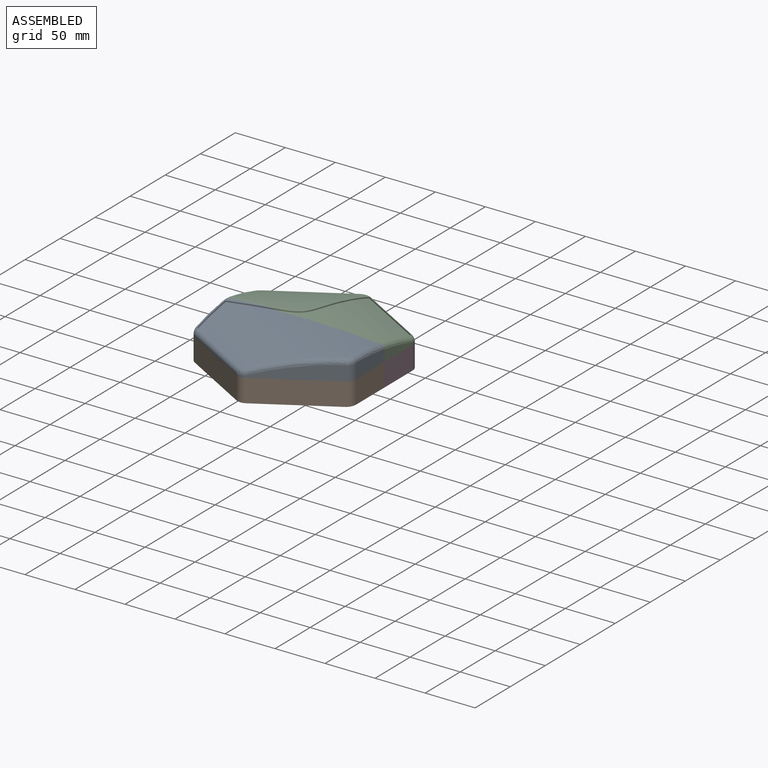
[diagram: assembled view]
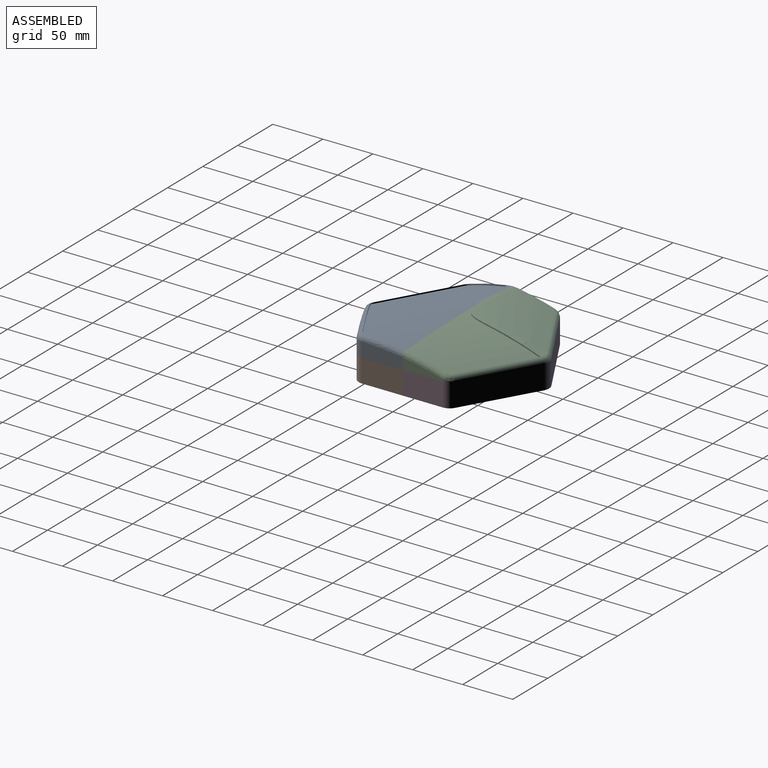
[diagram: assembled view, second angle]
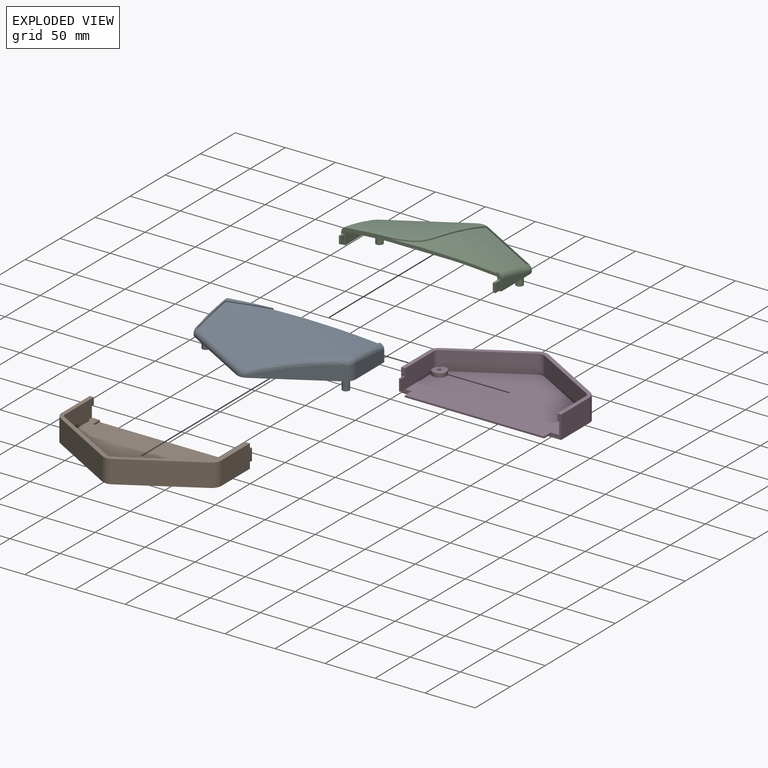
[diagram: exploded view]
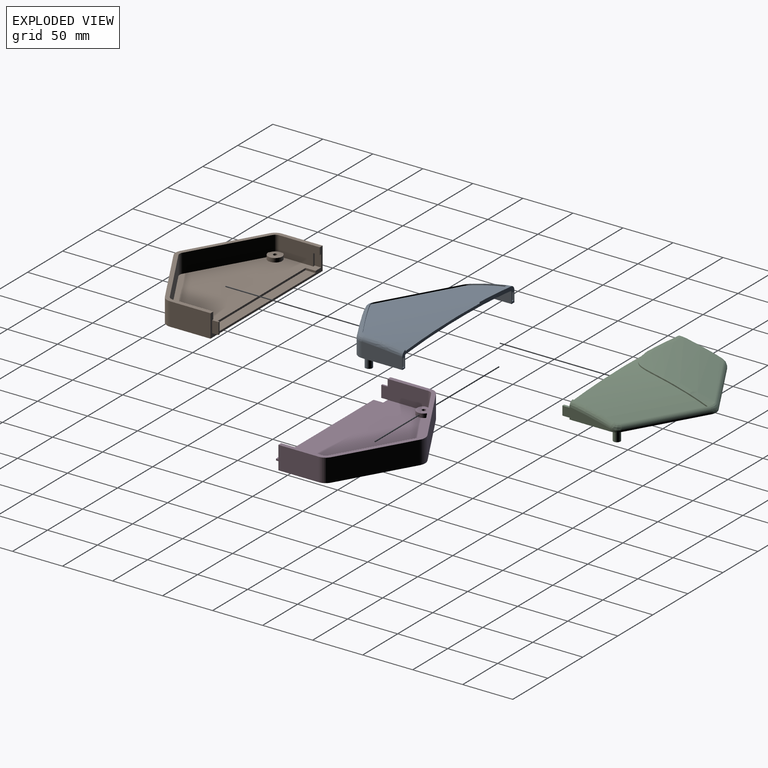
[diagram: exploded view, second angle]
ASSEMBLY  parts=4 mates=3
PART A: 58 faces, bbox 188.9x33.6x176.1 mm
  f0: plane 9x8mm, normal (-1,0,0), area 72mm2, adj f1,f3,f4,f5
  f1: plane 8x2.5mm, normal (0,1,0), area 20mm2, adj f0,f2,f3,f5
  f2: plane 9x8mm, normal (1,0,0), area 72mm2, adj f1,f3,f4,f5
  f3: plane 9x2.5mm, normal (0,0,1), area 22.5mm2, adj f0,f1,f2,f4
  f4: plane 8x2.5mm, normal (0,-1,0), area 20mm2, adj f0,f2,f3,f5
  f5: plane 161.9x21.08mm, normal (0,0,1), area 557.1mm2, adj f0,f1,f2,f4,f6,f8,f9,f10
  f6: plane 5x2.5mm, normal (0,-1,0), area 12.5mm2, adj f5,f7,f8,f10
  f7: plane 8x2.5mm, normal (0,0,1), area 20mm2, adj f6,f8,f9,f10
  f8: plane 8x5mm, normal (1,0,0), area 40mm2, adj f5,f6,f7,f9
  f9: plane 5x2.5mm, normal (0,1,0), area 12.5mm2, adj f5,f7,f8,f10
  f10: plane 8x5mm, normal (-1,0,0), area 40mm2, adj f5,f6,f7,f9
  f11: bspline ~44.99x4.58mm, area 56.1mm2, adj f5,f12,f56,f57
  f12: bspline ~45.08x6.13mm, area 79.1mm2, adj f5,f11,f13
  f13: bspline ~5.3x4.54mm, area 29.9mm2, adj f5,f12,f14,f25
  f14: bspline ~38.3x13.43mm, area 275.7mm2, adj f13,f15,f25,f56
  f15: bspline ~8.66x6.65mm, area 53.8mm2, adj f14,f16,f24,f56
  f16: cylinder r=10mm len=8.66mm, axis (0,-1,0), area 20.6mm2, adj f15,f17,f25,f53
  f17: plane 70x40.41mm, normal (0.5,0,-0.87), area 123.2mm2, adj f16,f18,f24,f53
  f18: cylinder r=10mm len=10mm, axis (0,-1,0), area 20.6mm2, adj f17,f19,f23,f53
  f19: plane 70.01x40.43mm, normal (-0.5,0,-0.87), area 849.4mm2, adj f18,f20,f22,f53
  f20: cylinder r=10mm len=14.69mm, axis (0,1,0), area 153.8mm2, adj f19,f21,f53,f54
  f21: bspline ~8.72x7.53mm, area 67.7mm2, adj f20,f22,f55,f56
  f22: bspline ~73.32x44.75mm, area 615.3mm2, adj f19,f21,f23,f56
  f23: bspline ~10x5.61mm, area 53.8mm2, adj f18,f22,f24,f56
  f24: cylinder r=5mm len=71.65mm, axis (-0.87,0,-0.5), area 494.2mm2, adj f15,f17,f23,f56
  f25: plane 40.42x11.25mm, normal (1,0,0), area 301.2mm2, adj f5,f13,f14,f16,f53
  f26: plane 40.42x11.25mm, normal (-1,0,0), area 301.2mm2, adj f5,f27,f37,f38,f53
  f27: cylinder r=6mm len=5.2mm, axis (0,-1,0), area 12.4mm2, adj f26,f28,f36,f53
  f28: bspline ~5.2x3.33mm, area 7.6mm2, adj f27,f29,f37,f40
  f29: cylinder r=1mm len=70.33mm, axis (-0.87,0,-0.5), area 98.8mm2, adj f28,f30,f36,f40
  f30: bspline ~6x1.83mm, area 7.6mm2, adj f29,f31,f35,f40
  f31: cylinder r=6mm len=6mm, axis (0,-1,0), area 12.4mm2, adj f30,f32,f36,f53
  f32: plane 70.01x40.43mm, normal (0.5,0,0.87), area 849.4mm2, adj f31,f33,f35,f53
  f33: cylinder r=6mm len=14.69mm, axis (0,1,0), area 92.3mm2, adj f32,f34,f52,f53
  f34: bspline ~5.21x3.51mm, area 9.3mm2, adj f33,f35,f40,f51
  f35: bspline ~70.66x41.31mm, area 121.9mm2, adj f30,f32,f34,f40
  f36: plane 70x40.41mm, normal (-0.5,0,0.87), area 123.2mm2, adj f27,f29,f31,f53
  f37: bspline ~37.15x9.5mm, area 54.7mm2, adj f26,f28,f38,f40
  f38: bspline ~3.72x1.31mm, area 5.4mm2, adj f5,f26,f37,f39
  f39: bspline ~43.02x5.32mm, area 65mm2, adj f5,f38,f40
  f40: cylinder r=221mm len=185.06mm, axis (-0.87,0,-0.5), area 9865mm2, adj f5,f28,f29,f30,f34,f35,f37,f39
  f41: bspline ~9.02x9mm, area 38.4mm2, adj f40,f42
  f42: cylinder r=3.5mm len=26.69mm, axis (0,1,0), area 586.8mm2, adj f41,f43
  f43: plane 7x7mm, normal (0,1,0), area 27.1mm2, adj f42,f44
  f44: cylinder r=1.9mm len=9mm, axis (0,1,0), area 107.4mm2, adj f43,f45
  f45: cone r=0.95mm half-angle=59deg, axis (0,-1,0), area 13.2mm2, adj f44
  f46: bspline ~9.02x9mm, area 39.7mm2, adj f40,f47
  f47: cylinder r=3.5mm len=16.01mm, axis (0,1,0), area 328.3mm2, adj f46,f48
  f48: plane 7x7mm, normal (0,-1,0), area 27.1mm2, adj f47,f49
  f49: cylinder r=1.9mm len=9mm, axis (0,1,0), area 107.4mm2, adj f48,f50
  f50: cone r=0.95mm half-angle=59deg, axis (0,-1,0), area 13.2mm2, adj f49
  f51: bspline ~40.56x4.21mm, area 61.9mm2, adj f5,f34,f40,f52
  f52: plane 40.42x14.69mm, normal (1,0,0), area 547.9mm2, adj f5,f33,f51,f53
  f53: plane 160x90.83mm, normal (0,-1,0), area 1070.5mm2, adj f5,f16,f17,f18,f19,f20,f25,f26
  f54: plane 40.42x14.69mm, normal (-1,0,0), area 547.9mm2, adj f5,f20,f53,f55
  f55: bspline ~41.15x8.21mm, area 309.9mm2, adj f5,f21,f54,f56
  f56: bspline ~151.23x87.06mm, area 318.5mm2, adj f5,f11,f14,f15,f21,f22,f23,f24
  f57: cylinder r=225mm len=186.95mm, axis (-0.87,0,-0.5), area 10042.8mm2, adj f5,f11,f56
PART B: 39 faces, bbox 160x23x97.2 mm
  f0: plane 40.41x23mm, normal (1,0,0), area 929.5mm2, adj f1,f11,f25,f30
  f1: plane 160x90.83mm, normal (0,-1,0), area 10911.9mm2, adj f0,f4,f6,f11,f12,f13,f14,f15
  f2: cylinder r=1.9mm len=5.5mm, axis (0,1,0), area 65.7mm2, adj f7,f38
  f3: cylinder r=1.9mm len=5.5mm, axis (0,1,0), area 65.7mm2, adj f5,f36
  f4: cylinder r=5mm len=10mm, axis (0,1,0), area 78.5mm2, adj f1,f5
  f5: plane 10x10mm, normal (0,-1,0), area 67.2mm2, adj f3,f4
  f6: cylinder r=5mm len=10mm, axis (0,1,0), area 78.5mm2, adj f1,f7
  f7: plane 10x10mm, normal (0,-1,0), area 67.2mm2, adj f2,f6
  f8: plane 70x40.41mm, normal (-0.5,0,0.87), area 1521.3mm2, adj f9,f17,f30,f32,f33,f38
  f9: cylinder r=6mm len=19mm, axis (0,1,0), area 119.4mm2, adj f8,f17,f30,f34
  f10: plane 46.76x19mm, normal (1,0,0), area 827.7mm2, adj f17,f25,f27,f28,f29,f30,f35,f36
  f11: cylinder r=10mm len=23mm, axis (0,1,0), area 240.9mm2, adj f0,f1,f12,f30
  f12: plane 70x40.41mm, normal (0.5,0,-0.87), area 1859.1mm2, adj f1,f11,f13,f30
  f13: cylinder r=10mm len=23mm, axis (0,1,0), area 240.9mm2, adj f1,f12,f14,f30
  f14: plane 70x40.41mm, normal (-0.5,0,-0.87), area 1859.1mm2, adj f1,f13,f15,f30
  f15: cylinder r=10mm len=23mm, axis (0,1,0), area 240.9mm2, adj f1,f14,f16,f30
  f16: plane 40.41x23mm, normal (-1,0,0), area 929.5mm2, adj f1,f15,f25,f30
  f17: plane 154x86.83mm, normal (0,1,0), area 8327mm2, adj f8,f9,f10,f19,f20,f21,f22,f23
  f18: plane 140x10mm, normal (0,1,0), area 1400mm2, adj f19,f20,f21,f25
  f19: plane 10x2mm, normal (1,0,0), area 20mm2, adj f17,f18,f20,f25
  f20: plane 140x2mm, normal (0,0,1), area 280mm2, adj f17,f18,f19,f21
  f21: plane 10x2mm, normal (-1,0,0), area 20mm2, adj f17,f18,f20,f25
  f22: plane 12x6.5mm, normal (-1,0,0), area 78mm2, adj f17,f23,f24,f25
  f23: plane 12x2mm, normal (0,0,1), area 24mm2, adj f17,f22,f24,f31
  f24: plane 6.5x2mm, normal (0,-1,0), area 13mm2, adj f22,f23,f25,f31
  f25: plane 160x23mm, normal (0,0,1), area 468.1mm2, adj f0,f1,f10,f16,f17,f18,f19,f21
  f26: plane 11.7x6.35mm, normal (-1,0,0), area 74.3mm2, adj f25,f27,f28,f29
  f27: plane 6.35x1.7mm, normal (0,-1,0), area 10.8mm2, adj f10,f25,f26,f28
  f28: plane 11.7x1.7mm, normal (0,0,1), area 19.9mm2, adj f10,f26,f27,f29
  f29: plane 6.35x1.7mm, normal (0,1,0), area 10.8mm2, adj f10,f25,f26,f28
  f30: plane 160x90.83mm, normal (0,1,0), area 1070.5mm2, adj f0,f8,f9,f10,f11,f12,f13,f14
  f31: plane 40.41x19mm, normal (-1,0,0), area 675.5mm2, adj f17,f23,f24,f25,f30,f32,f33,f38
  f32: cylinder r=6mm len=15mm, axis (0,1,0), area 94.2mm2, adj f8,f30,f31,f38
  f33: cylinder r=7mm len=14mm, axis (0,1,0), area 116.3mm2, adj f8,f17,f31,f38
  f34: plane 70x40.41mm, normal (0.5,0,0.87), area 1521.3mm2, adj f9,f17,f30,f35,f36,f37
  f35: cylinder r=6mm len=15mm, axis (0,1,0), area 94.2mm2, adj f10,f30,f34,f36
  f36: plane 14x13mm, normal (0,1,0), area 130.9mm2, adj f3,f10,f34,f35,f37
  f37: cylinder r=7mm len=14mm, axis (0,1,0), area 116.3mm2, adj f10,f17,f34,f36
  f38: plane 14x13mm, normal (0,1,0), area 130.9mm2, adj f2,f8,f31,f32,f33
PART C: 64 faces, bbox 189.2x33.3x139.2 mm
  f0: plane 9x7.6mm, normal (1,0,0), area 68.4mm2, adj f1,f3,f4,f10
  f1: plane 7.6x2.5mm, normal (0,1,0), area 19mm2, adj f0,f2,f4,f10
  f2: plane 9x7.6mm, normal (-1,0,0), area 68.4mm2, adj f1,f3,f4,f10
  f3: plane 7.6x2.5mm, normal (0,-1,0), area 19mm2, adj f0,f2,f4,f10
  f4: plane 9x2.5mm, normal (0,0,-1), area 22.5mm2, adj f0,f1,f2,f3
  f5: plane 4.6x2.1mm, normal (0,1,0), area 9.7mm2, adj f6,f8,f9,f10
  f6: plane 7.6x4.6mm, normal (-1,0,0), area 35mm2, adj f5,f7,f9,f10
  f7: plane 4.6x2.1mm, normal (0,-1,0), area 9.7mm2, adj f6,f8,f9,f10
  f8: plane 7.6x4.6mm, normal (1,0,0), area 35mm2, adj f5,f7,f9,f10
  f9: plane 7.6x2.1mm, normal (0,0,-1), area 16mm2, adj f5,f6,f7,f8
  f10: plane 161.58x20.76mm, normal (0,0,-1), area 561.1mm2, adj f0,f1,f2,f3,f5,f6,f7,f8
  f11: bspline ~89.03x79.56mm, area 654.1mm2, adj f10,f12,f25,f26,f36,f37,f38
  f12: bspline ~4.79x1.37mm, area 7mm2, adj f10,f11,f13,f45
  f13: plane 40.42x11.27mm, normal (-1,0,0), area 304.7mm2, adj f10,f12,f14,f45,f47
  f14: plane 160x90.71mm, normal (0,-1,0), area 1070.1mm2, adj f10,f13,f15,f39,f40,f41,f42,f46
  f15: plane 40.42x11.27mm, normal (1,0,0), area 304.7mm2, adj f10,f14,f16,f61,f63
  f16: bspline ~5.53x5.36mm, area 38mm2, adj f10,f15,f17,f61
  f17: bspline ~91.67x80.69mm, area 728.6mm2, adj f10,f16,f18,f49,f52,f53,f54
  f18: bspline ~85.64x35.55mm, area 129.4mm2, adj f10,f17,f31,f32
  f19: cone r=0.95mm half-angle=59deg, axis (0,-1,0), area 13.2mm2, adj f20
  f20: cylinder r=1.9mm len=9mm, axis (0,1,0), area 107.4mm2, adj f19,f29
  f21: cone r=0.95mm half-angle=59deg, axis (0,-1,0), area 13.2mm2, adj f22
  f22: cylinder r=1.9mm len=9mm, axis (0,1,0), area 107.4mm2, adj f21,f30
  f23: bspline ~9.02x9mm, area 39.7mm2, adj f24,f25
  f24: cylinder r=3.5mm len=16.78mm, axis (0,1,0), area 343mm2, adj f23,f30
  f25: cylinder r=221mm len=119.37mm, axis (-0.87,0,0.5), area 4280.3mm2, adj f11,f23,f43,f44,f45
  f26: cylinder r=221mm len=135.3mm, axis (-0.87,0,-0.5), area 5001.7mm2, adj f10,f11,f27,f33,f34,f35
  f27: bspline ~9.44x9.33mm, area 39.7mm2, adj f26,f28
  f28: cylinder r=3.5mm len=16.73mm, axis (0,1,0), area 342.2mm2, adj f27,f29
  f29: plane 7x7mm, normal (0,-1,0), area 27.1mm2, adj f20,f28
  f30: plane 7x7mm, normal (0,-1,0), area 27.1mm2, adj f22,f24
  f31: cylinder r=225mm len=135.86mm, axis (-0.87,0,-0.5), area 6253.3mm2, adj f10,f18,f32
  f32: bspline ~85.64x70.74mm, area 156.2mm2, adj f10,f18,f31,f48,f50,f51
  f33: bspline ~40.85x10.08mm, area 60.1mm2, adj f10,f26,f34,f39
  f34: bspline ~5.2x3.33mm, area 7.6mm2, adj f26,f33,f35,f41
  f35: cylinder r=1mm len=68.61mm, axis (0.87,0,0.5), area 96.4mm2, adj f26,f34,f37,f40
  f36: bspline ~6.77x1.79mm, area 8.5mm2, adj f11,f37,f38,f42
  f37: bspline ~1.72x1.34mm, area 1.9mm2, adj f11,f35,f36,f40
  f38: bspline ~1.84x1.42mm, area 2.1mm2, adj f11,f36,f43,f46
  f39: plane 40.42x11.48mm, normal (1,0,0), area 301.5mm2, adj f10,f14,f33,f41
  f40: plane 69.61x40.19mm, normal (0.5,0,-0.87), area 122.5mm2, adj f14,f35,f37,f41,f42
  f41: cylinder r=6mm len=5.2mm, axis (0,-1,0), area 12.4mm2, adj f14,f34,f39,f40
  f42: cylinder r=6.77mm len=6.77mm, axis (0,-1,0), area 10.5mm2, adj f14,f36,f40,f46
  f43: cylinder r=1mm len=68.48mm, axis (0.87,0,-0.5), area 95.9mm2, adj f25,f38,f44,f46
  f44: bspline ~5.2x3.33mm, area 7.6mm2, adj f25,f43,f45,f47
  f45: bspline ~36.1x9.45mm, area 53.1mm2, adj f12,f13,f25,f44
  f46: plane 69.61x40.19mm, normal (-0.5,0,-0.87), area 123.6mm2, adj f14,f38,f42,f43,f47
  f47: cylinder r=6mm len=5.2mm, axis (0,-1,0), area 12.5mm2, adj f13,f14,f44,f46
  f48: bspline ~42.57x14.11mm, area 305.3mm2, adj f10,f32,f50,f55
  f49: cylinder r=225mm len=119.97mm, axis (-0.87,0,0.5), area 4442.9mm2, adj f17,f59,f60,f61
  f50: bspline ~8.66x6.65mm, area 53.8mm2, adj f32,f48,f51,f57
  f51: cylinder r=5mm len=69.92mm, axis (0.87,0,0.5), area 482.1mm2, adj f32,f50,f53,f56
  f52: bspline ~10.77x4.83mm, area 60.9mm2, adj f17,f53,f54,f58
  f53: bspline ~4.75x3.65mm, area 10.4mm2, adj f17,f51,f52,f56
  f54: bspline ~4.76x3.71mm, area 11.3mm2, adj f17,f52,f59,f62
  f55: plane 40.42x11.48mm, normal (-1,0,0), area 301.5mm2, adj f10,f14,f48,f57
  f56: plane 69.61x40.19mm, normal (-0.5,0,0.87), area 122.5mm2, adj f14,f51,f53,f57,f58
  f57: cylinder r=10mm len=8.66mm, axis (0,-1,0), area 20.6mm2, adj f14,f50,f55,f56
  f58: cylinder r=10.77mm len=10.77mm, axis (0,-1,0), area 16.8mm2, adj f14,f52,f56,f62
  f59: cylinder r=5mm len=69.79mm, axis (0.87,0,-0.5), area 479.7mm2, adj f49,f54,f60,f62
  f60: bspline ~8.66x6.64mm, area 53.6mm2, adj f49,f59,f61,f63
  f61: bspline ~37.25x13.37mm, area 267.6mm2, adj f15,f16,f49,f60
  f62: plane 69.61x40.19mm, normal (0.5,0,0.87), area 123.6mm2, adj f14,f54,f58,f59,f63
  f63: cylinder r=10mm len=8.66mm, axis (0,-1,0), area 20.8mm2, adj f14,f15,f60,f62
PART D: 39 faces, bbox 160x23x100.3 mm
  f0: cylinder r=7mm len=14mm, axis (0,1,0), area 116.3mm2, adj f1,f2,f3,f7
  f1: plane 14x13mm, normal (0,1,0), area 130.9mm2, adj f0,f2,f3,f19,f36
  f2: plane 69.61x40.19mm, normal (0.5,0,-0.87), area 1512.9mm2, adj f0,f1,f7,f28,f36,f37
  f3: plane 40.41x19mm, normal (1,0,0), area 675.5mm2, adj f0,f1,f7,f8,f9,f26,f28,f36
  f4: cylinder r=7mm len=14mm, axis (0,1,0), area 116.3mm2, adj f5,f6,f7,f29
  f5: plane 14x13mm, normal (0,1,0), area 130.9mm2, adj f4,f6,f20,f29,f38
  f6: plane 69.61x40.19mm, normal (-0.5,0,-0.87), area 1512.9mm2, adj f4,f5,f7,f28,f37,f38
  f7: plane 154x96.31mm, normal (0,1,0), area 11062.8mm2, adj f0,f2,f3,f4,f6,f9,f10,f15
  f8: plane 6.5x2mm, normal (0,-1,0), area 13mm2, adj f3,f9,f10,f26
  f9: plane 12x2mm, normal (0,0,-1), area 24mm2, adj f3,f7,f8,f10
  f10: plane 12x6.5mm, normal (1,0,0), area 78mm2, adj f7,f8,f9,f26
  f11: plane 6.35x1.7mm, normal (0,1,0), area 10.8mm2, adj f12,f14,f26,f29
  f12: plane 11.7x1.7mm, normal (0,0,-1), area 19.9mm2, adj f11,f13,f14,f29
  f13: plane 6.35x1.7mm, normal (0,-1,0), area 10.8mm2, adj f12,f14,f26,f29
  f14: plane 11.7x6.35mm, normal (1,0,0), area 74.3mm2, adj f11,f12,f13,f26
  f15: plane 9.6x1.7mm, normal (1,0,0), area 16.3mm2, adj f7,f17,f18,f26
  f16: plane 9.6x1.7mm, normal (-1,0,0), area 16.3mm2, adj f7,f17,f18,f26
  f17: plane 139.2x1.7mm, normal (0,0,-1), area 236.6mm2, adj f7,f15,f16,f18
  f18: plane 139.2x9.6mm, normal (0,-1,0), area 1336.3mm2, adj f15,f16,f17,f26
  f19: cylinder r=1.9mm len=5.5mm, axis (0,1,0), area 65.7mm2, adj f1,f22
  f20: cylinder r=1.9mm len=5.5mm, axis (0,1,0), area 65.7mm2, adj f5,f24
  f21: cylinder r=5mm len=10mm, axis (0,1,0), area 78.5mm2, adj f22,f25
  f22: plane 10x10mm, normal (0,-1,0), area 67.2mm2, adj f19,f21
  f23: cylinder r=5mm len=10mm, axis (0,1,0), area 78.5mm2, adj f24,f25
  f24: plane 10x10mm, normal (0,-1,0), area 67.2mm2, adj f20,f23
  f25: plane 160x90.71mm, normal (0,-1,0), area 10911.1mm2, adj f21,f23,f26,f27,f30,f31,f32,f33
  f26: plane 160x23mm, normal (0,0,-1), area 511.5mm2, adj f3,f7,f8,f10,f11,f13,f14,f15
  f27: plane 40.41x23mm, normal (-1,0,0), area 929.5mm2, adj f25,f26,f28,f35
  f28: plane 160x90.71mm, normal (0,1,0), area 1070.1mm2, adj f2,f3,f6,f26,f27,f29,f30,f31
  f29: plane 46.76x19mm, normal (-1,0,0), area 827.7mm2, adj f4,f5,f7,f11,f12,f13,f26,f28
  f30: plane 69.61x40.19mm, normal (0.5,0,0.87), area 1848.8mm2, adj f25,f28,f32,f33
  f31: plane 40.41x23mm, normal (1,0,0), area 929.5mm2, adj f25,f26,f28,f32
  f32: cylinder r=10mm len=23mm, axis (0,1,0), area 240.9mm2, adj f25,f28,f30,f31
  f33: cylinder r=10.77mm len=23mm, axis (0,1,0), area 259.4mm2, adj f25,f28,f30,f34
  f34: plane 69.61x40.19mm, normal (-0.5,0,0.87), area 1848.8mm2, adj f25,f28,f33,f35
  f35: cylinder r=10mm len=23mm, axis (0,1,0), area 240.9mm2, adj f25,f27,f28,f34
  f36: cylinder r=6mm len=15mm, axis (0,1,0), area 94.2mm2, adj f1,f2,f3,f28
  f37: cylinder r=6.77mm len=19mm, axis (0,1,0), area 134.7mm2, adj f2,f6,f7,f28
  f38: cylinder r=6mm len=15mm, axis (0,1,0), area 94.2mm2, adj f5,f6,f28,f29
PLACE A rot(axis=(0,-0.71,-0.71),180deg) t=(34.54,-30.71,71.94)mm
PLACE B rot(axis=(0,-0.71,-0.71),180deg) t=(34.98,-29.96,71.86)mm
PLACE C rot(axis=(0,-0.71,-0.71),180deg) t=(34.54,-30.71,71.94)mm
PLACE D rot(axis=(0,-0.71,-0.71),180deg) t=(34.98,-29.96,71.86)mm
MATE fastened C.f14 <-> D.f28  axis (0,0,-1) through (40.36,59.31,86.86)mm
MATE fastened C.f10 <-> A.f5  axis (0,1,0) through (-45.02,-29.96,86.86)mm
MATE fastened D.f26 <-> B.f25  axis (0,1,0) through (-45.02,-29.96,86.86)mm
